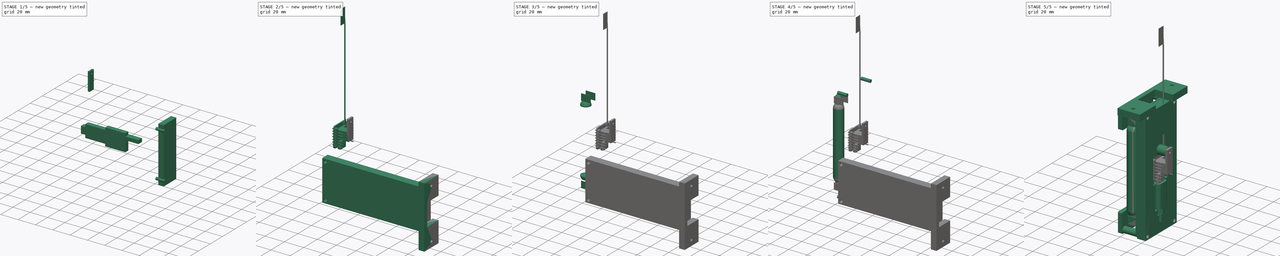
[diagram: build sequence overview — one tinted view per stage of 5, left to right]
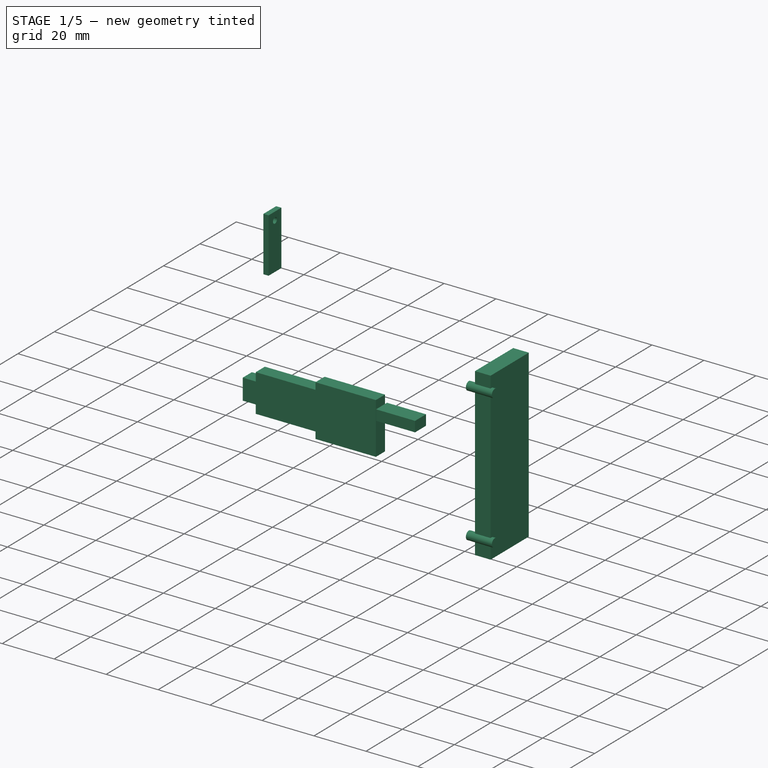
[diagram: stage 1 of 5 — iso view after this stage's code; geometry added in this stage tinted green]
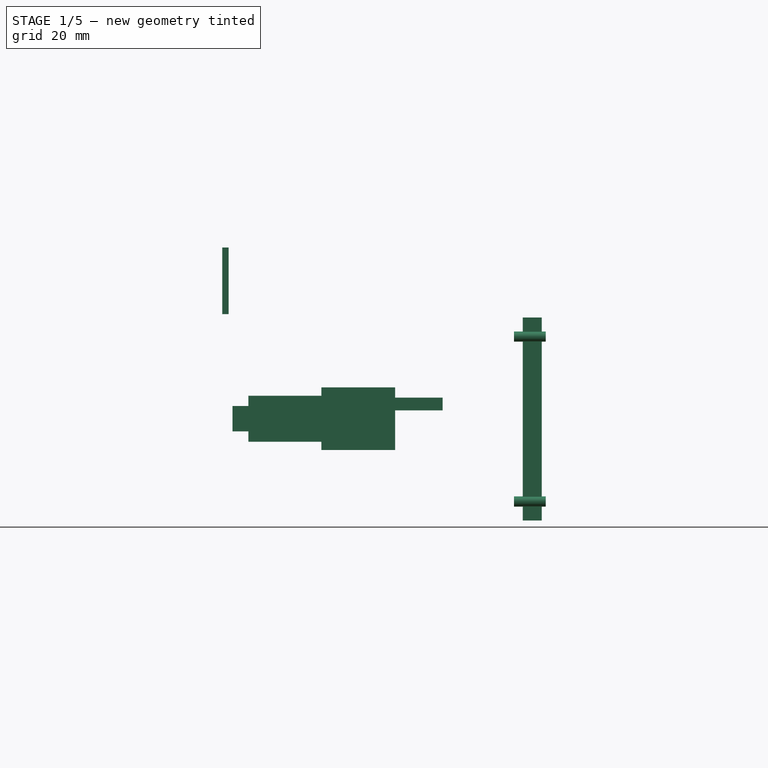
[diagram: stage 1 of 5 — front view after this stage's code; geometry added in this stage tinted green]
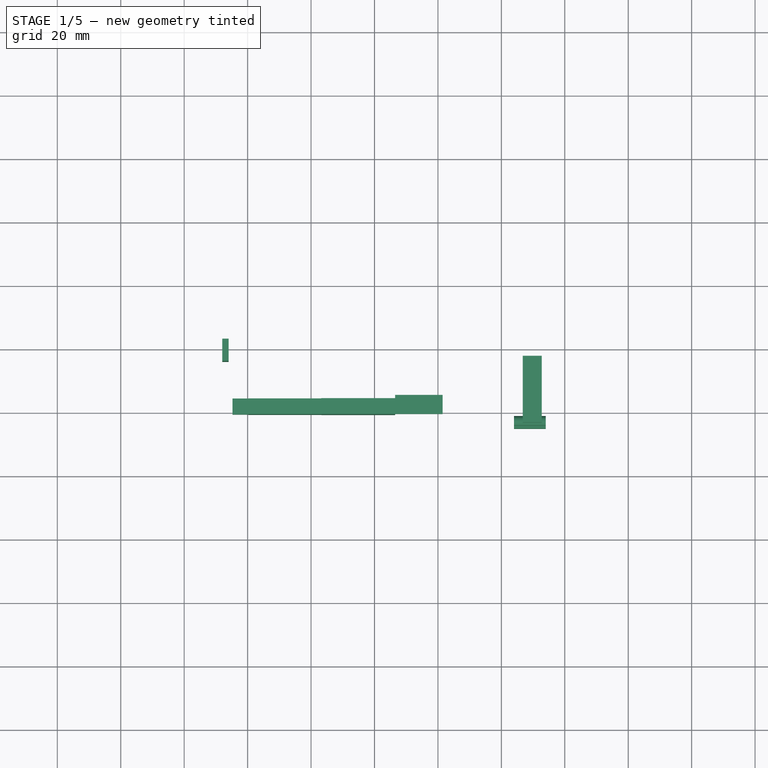
[diagram: stage 1 of 5 — top view after this stage's code; geometry added in this stage tinted green]
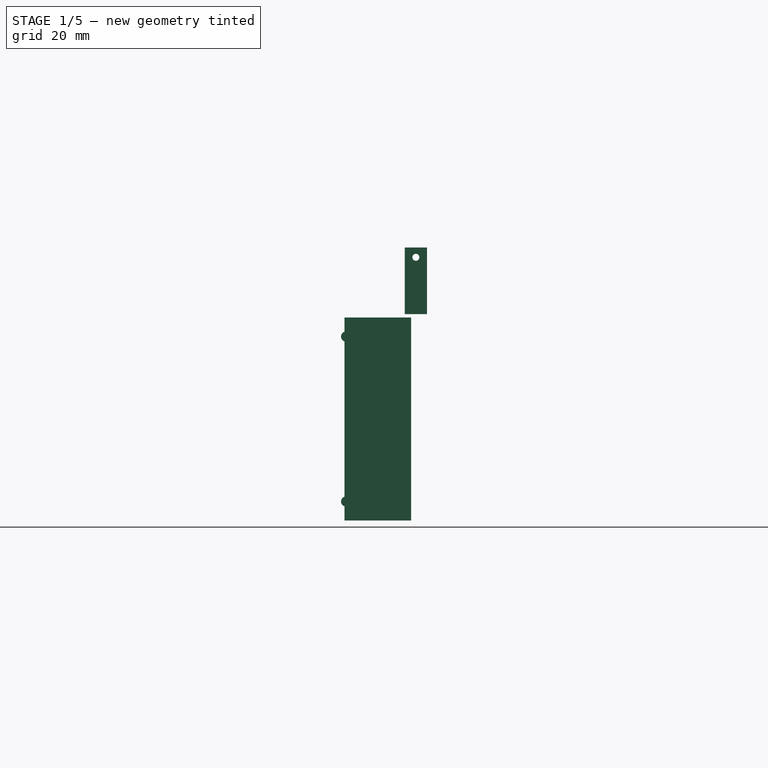
[diagram: stage 1 of 5 — right view after this stage's code; geometry added in this stage tinted green]
FCSTD DOCUMENT  (FreeCAD 1.0R39109 (Git))
Label: GeigerHolder
License: All rights reserved
LicenseURL: https://en.wikipedia.org/wiki/All_rights_reserved
objects: Part::Feature×59, App::Part×18, Part::MultiFuse×12, Part::Cylinder×12, Part::Box×10, Part::Cut×6, Sketcher::SketchObject×5, Part::Extrusion×4, Part::Sphere×4, Part::Fillet×2, Part::FeaturePython×1, Part::Compound×1
note: 121 computed .brp shape members not serialized (recipe doc carries the construction recipe); baked Part::Feature solids carry a one-line shape summary decoded from their .brp

FEATURE [App::Part] pins  label="pins003"
  Group = -> [Part__Feature,Part__Feature001,Part__Feature002]
  Origin = -> Origin003
FEATURE [App::Part] __pin_RMC_v0  label="3 pin RMC v0"
  Group = -> [pins,Part__Feature003]
  Origin = -> Origin004
  Placement = pos=(-3,12.25,7) rot=(0,0,1;4.71239rad)
FEATURE [App::Part] Part002  label="Radiation"
  Group = -> [Part__Feature008,Cylinder001,Cylinder002,Fusion005,Cylinder006,Cylinder007,Cylinder005,Cylinder008,Box,Cut,Sphere001,Sphere002,Cylinder,Fusion002,Fusion001,Fusion004,Fusion003,Cylinder004,Cylinder003,Sphere003,Sphere,Box002,Box001,Box004,Box003,Fusion006,Fillet002,__pin_RMC_v0]
  Origin = -> Origin002
  Placement = pos=(-5.5,0,0) rot=(0,0,1;0rad)
FEATURE [Part::Box] Box005  label="baseMOunt"
  AttacherType = Attacher::AttachEngine3D
  Height = 64
  Length = 6
  Placement = pos=(106.75,-4,-12) rot=(0,0,1;0rad)
  Width = 21
FEATURE [Part::Box] Box009  label="baseMOunt001"
  AttacherType = Attacher::AttachEngine3D
  Height = 23
  Length = 6
  Placement = pos=(106.75,0,9.5) rot=(0,0,1;0rad)
  Width = 17
FEATURE [Part::Cylinder] Cylinder009  label="Cylinder"
  Angle = 360
  AttacherType = Attacher::AttachEngine3D
  FirstAngle = 0
  Height = 10
  Placement = pos=(114,6.5,-6) rot=(0,1,0;4.71239rad)
  Radius = 1.6
  SecondAngle = 0
FEATURE [Part::Cylinder] Cylinder010
  Angle = 360
  AttacherType = Attacher::AttachEngine3D
  FirstAngle = 0
  Height = 10
  Placement = pos=(114,6.5,46) rot=(0,1,0;4.71239rad)
  Radius = 1.6
  SecondAngle = 0
FEATURE [Part::MultiFuse] Fusion010  label="m3Cyl"
  Placement = pos=(0,-10,0) rot=(0,0,1;0rad)
  Refine = true
  Shapes = -> [Cylinder009,Cylinder010]
FEATURE [Part::Box] Box010  label="Cube006"
  AttacherType = Attacher::AttachEngine3D
  Height = 21
  Length = 2
  Placement = pos=(12,15,53.1) rot=(0,0,1;0rad)
  Width = 7
FEATURE [Part::Feature] Part__Feature058  label="USB C -C0046"
  Placement = pos=(6.7,20.1,32) rot=(-0.57735,0.57735,0.57735;2.0944rad)
  shape: bbox 6.63 x 11.9 x 40.53 mm, 28 faces (baked)
FEATURE [App::Part] Part004  label="ESP001"
  Group = -> [XIAO_ESP32S3_v2,_x_Male_Pin_2_54_mm,_x_Male_Pin_2_54_mm001,_069940100,Fusion007,Part__Feature058]
  Origin = -> Origin017
FEATURE [Sketcher::SketchObject] Sketch004
  ArcFitTolerance = 1e-06
  FullyConstrained = true
  MakeInternals = false
  Placement = pos=(0,0,0) rot=(0.57735,0.57735,0.57735;2.0944rad)
  sketch-geometry (12):
    g0: LineSegment StartX=10.25 StartY=66.5 StartZ=0 EndX=10.25 EndY=43.25 EndZ=0
    g1: LineSegment StartX=30 StartY=43.25 StartZ=0 EndX=30 EndY=66.5 EndZ=0
    g2: LineSegment StartX=30 StartY=66.5 StartZ=0 EndX=10.25 EndY=66.5 EndZ=0
    g3: LineSegment StartX=10.25 StartY=43.25 StartZ=0 EndX=12.9 EndY=43.25 EndZ=0
    g4: LineSegment StartX=12.9 StartY=43.25 StartZ=0 EndX=12.9 EndY=20.25 EndZ=0
    g5: LineSegment StartX=12.9 StartY=20.25 StartZ=0 EndX=16.15 EndY=20.25 EndZ=0
    g6: LineSegment StartX=16.15 StartY=20.25 StartZ=0 EndX=16.15 EndY=15.25 EndZ=0
    g7: LineSegment StartX=16.15 StartY=15.25 StartZ=0 EndX=24.15 EndY=15.25 EndZ=0
    g8: LineSegment StartX=24.15 StartY=15.25 StartZ=0 EndX=24.15 EndY=20.25 EndZ=0
    g9: LineSegment StartX=24.15 StartY=20.25 StartZ=0 EndX=27.4 EndY=20.25 EndZ=0
    g10: LineSegment StartX=27.4 StartY=20.25 StartZ=0 EndX=27.4 EndY=43.25 EndZ=0
    g11: LineSegment StartX=27.4 StartY=43.25 StartZ=0 EndX=30 EndY=43.25 EndZ=0
  constraints (36):
    c: Coincident(g1,g2)
    c: Coincident(g2,g0)
    c: Vertical(g0)
    c: Vertical(g1)
    c: Horizontal(g2)
    c: Coincident(g3,g0)
    c: Horizontal(g3)
    c: Coincident(g4,g3)
    c: Vertical(g4)
    c: Coincident(g5,g4)
    c: Horizontal(g5)
    c: Coincident(g6,g5)
    c: Vertical(g6)
    c: Coincident(g7,g6)
    c: Horizontal(g7)
    c: Coincident(g8,g7)
    c: Vertical(g8)
    c: Coincident(g9,g8)
    c: Horizontal(g9)
    c: Coincident(g10,g9)
    c: Vertical(g10)
    c: Coincident(g11,g10)
    c: Coincident(g11,g1)
    c: Horizontal(g11)
    c: Distance(g4) = 23
    c: Distance(g4,g-1) = 20.25
    c: Distance(g5) = 3.25
    c: Distance(g6) = 5
    c: Distance(g7) = 8
    c: Distance(g6,g-2) = 16.15
    c: Distance(g8) = 5
    c: Distance(g9) = 3.25
    c: Distance(g10) = 23
    c: Distance(g0,g-2) = 10.25
    c: Distance(g0) = 23.25
    c: Distance(g2) = 19.75
FEATURE [Part::Extrusion] Extrude003
  Base = -> Sketch004
  Dir = (1,0,0)
  DirMode = 2
  FaceMakerClass = Part::FaceMakerBullseye
  FaceMakerMode = 3
  LengthFwd = 5
  LengthRev = 0
  Placement = pos=(0,4,40.25) rot=(-0.57735,0.57735,-0.57735;2.0944rad)
  Solid = true
  Symmetric = false
FEATURE [Part::Box] Box011  label="Cube007"
  AttacherType = Attacher::AttachEngine3D
  Height = 4
  Length = 15
  Placement = pos=(66.5,-0.9,22.75) rot=(0,0,1;0rad)
  Width = 6
FEATURE [Part::Cylinder] Cylinder011
  Angle = 360
  AttacherType = Attacher::AttachEngine3D
  FirstAngle = 0
  Height = 21
  Placement = pos=(7,18.5,71) rot=(0,1,0;1.5708rad)
  Radius = 1.1
  SecondAngle = 0
FEATURE [Part::Cut] Cut005
  Base = -> Box010
  Refine = true
  Tool = -> Cylinder011
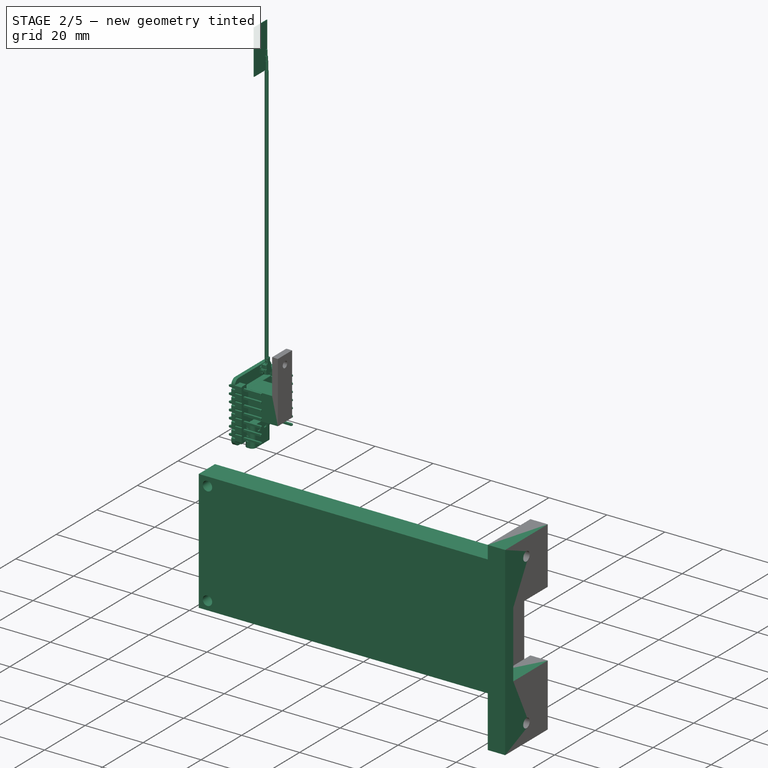
[diagram: stage 2 of 5 — iso view after this stage's code; geometry added in this stage tinted green]
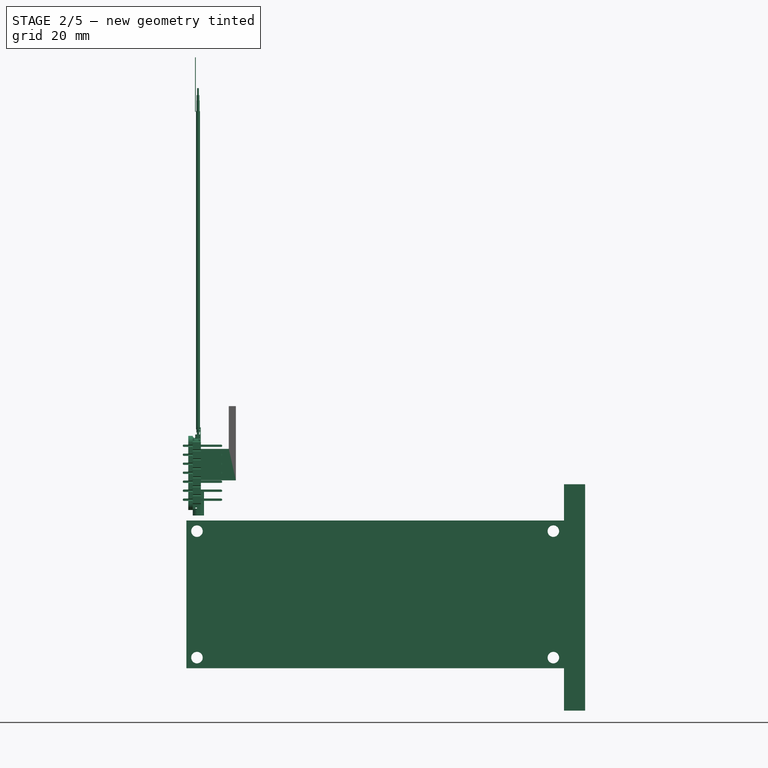
[diagram: stage 2 of 5 — front view after this stage's code; geometry added in this stage tinted green]
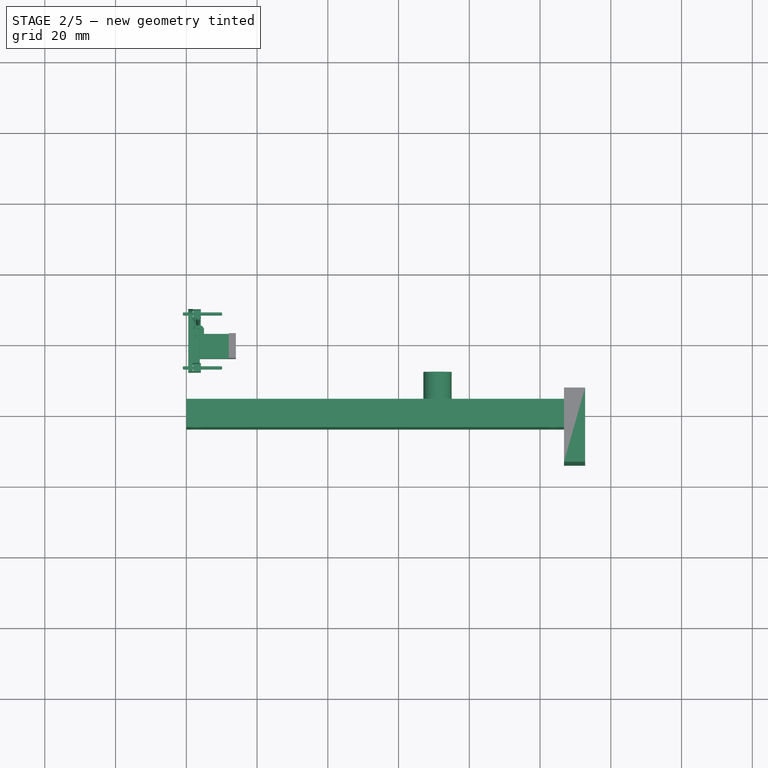
[diagram: stage 2 of 5 — top view after this stage's code; geometry added in this stage tinted green]
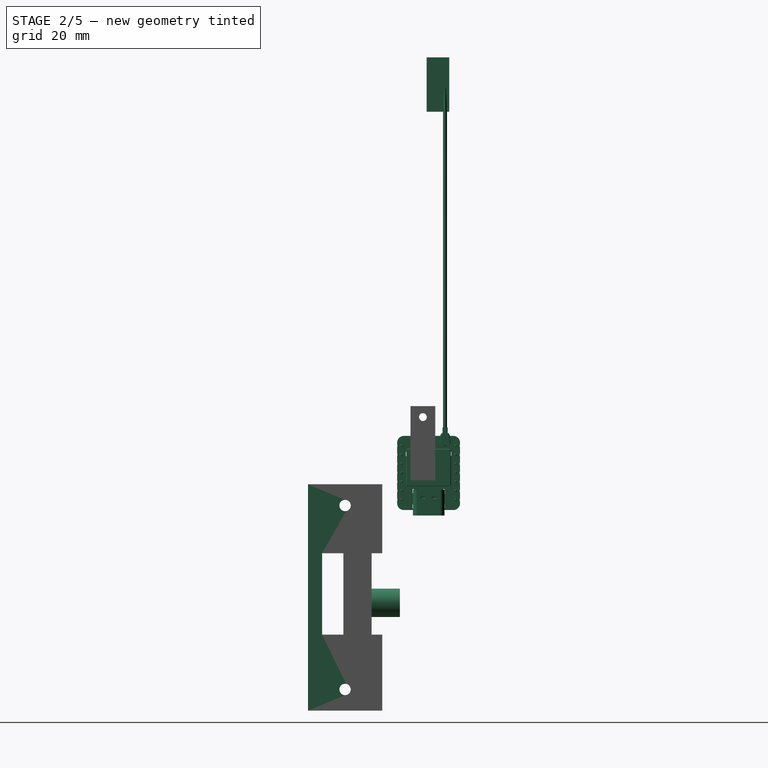
[diagram: stage 2 of 5 — right view after this stage's code; geometry added in this stage tinted green]
FEATURE [Sketcher::SketchObject] Sketch
  ArcFitTolerance = 1e-06
  FullyConstrained = true
  MakeInternals = false
  Placement = pos=(0,0,0) rot=(0.57735,0.57735,0.57735;2.0944rad)
  sketch-geometry (8):
    g0: LineSegment StartX=0 StartY=0 StartZ=0 EndX=106.75 EndY=0 EndZ=0
    g1: LineSegment StartX=106.75 StartY=0 StartZ=0 EndX=106.75 EndY=41.75 EndZ=0
    g2: LineSegment StartX=106.75 StartY=41.75 StartZ=0 EndX=0 EndY=41.75 EndZ=0
    g3: LineSegment StartX=0 StartY=41.75 StartZ=0 EndX=0 EndY=0 EndZ=0
    g4: Circle CenterX=3 CenterY=3 CenterZ=0 NormalX=0 NormalY=0 NormalZ=1 AngleXU=0 Radius=1.625
    g5: Circle CenterX=3 CenterY=38.75 CenterZ=0 NormalX=0 NormalY=0 NormalZ=1 AngleXU=0 Radius=1.625
    g6: Circle CenterX=103.75 CenterY=38.75 CenterZ=0 NormalX=0 NormalY=0 NormalZ=1 AngleXU=0 Radius=1.625
    g7: Circle CenterX=103.75 CenterY=3 CenterZ=0 NormalX=0 NormalY=0 NormalZ=1 AngleXU=0 Radius=1.625
  constraints (23):
    c: Coincident(g0,g1)
    c: Coincident(g1,g2)
    c: Coincident(g2,g3)
    c: Coincident(g3,g0)
    c: Horizontal(g0)
    c: Horizontal(g2)
    c: Vertical(g1)
    c: Vertical(g3)
    c: Coincident(g0,g-1)
    c: Distance(g3) = 41.75
    c: Distance(g0) = 106.75
    c: Distance(g4,g0) = 3
    c: Distance(g4,g-2) = 3
    c: Distance(g5,g-2) = 3
    c: Distance(g5,g-1) = 38.75
    c: Distance(g7,g-2) = 103.75
    c: Distance(g7,g-1) = 3
    c: Distance(g6,g-2) = 103.75
    c: Distance(g6,g-1) = 38.75
    c: Equal(g4,g5)
    c: Equal(g4,g6)
    c: Equal(g4,g7)
    c: Diameter(g4) = 3.25
FEATURE [Part::Extrusion] Extrude  label="Bottom"
  Base = -> Sketch
  Dir = (1,0,0)
  DirMode = 2
  FaceMakerClass = Part::FaceMakerBullseye
  FaceMakerMode = 3
  LengthFwd = 8
  LengthRev = 0
  Placement = pos=(0,4,0) rot=(0,0,1;4.71239rad)
  Solid = true
  Symmetric = false
FEATURE [Part::Feature] Part__Feature009  label="BOSS-EXTRUDE14_8_"
  Placement = pos=(-3.0192,1.09628,5.395) rot=(0,0,1;0rad)
  shape: bbox 0.6 x 1 x 0.3 mm, 6 faces (baked)
FEATURE [Part::Feature] Part__Feature010  label="BOSS-EXTRUDE7_4_"
  Placement = pos=(-3.0192,1.09628,5.395) rot=(0,0,1;0rad)
  shape: bbox 0.3 x 3.784 x 0.75 mm, 6 faces (baked)
FEATURE [Part::Feature] Part__Feature011  label="BOSS-EXTRUDE7_3_"
  Placement = pos=(-3.0192,1.09628,5.395) rot=(0,0,1;0rad)
  shape: bbox 0.3 x 3.784 x 0.75 mm, 6 faces (baked)
FEATURE [Part::Feature] Part__Feature012  label="BOSS-EXTRUDE14_4_"
  Placement = pos=(-3.0192,1.09628,5.395) rot=(0,0,1;0rad)
  shape: bbox 0.3 x 1 x 0.3 mm, 6 faces (baked)
FEATURE [Part::Feature] Part__Feature004  label="BOSS-EXTRUDE14_2_"
  Placement = pos=(-3.0192,1.09628,5.395) rot=(0,0,1;0rad)
  shape: bbox 0.6 x 1 x 0.3 mm, 6 faces (baked)
FEATURE [Part::Feature] Part__Feature005  label="BOSS-EXTRUDE14_11_"
  Placement = pos=(-3.0192,1.09628,5.395) rot=(0,0,1;0rad)
  shape: bbox 0.3 x 1 x 0.3 mm, 6 faces (baked)
FEATURE [Part::Feature] Part__Feature006  label="BOSS-EXTRUDE7_7_"
  Placement = pos=(-3.0192,1.09628,5.395) rot=(0,0,1;0rad)
  shape: bbox 0.3 x 3.784 x 0.75 mm, 6 faces (baked)
FEATURE [Part::Feature] Part__Feature007  label="BOSS-EXTRUDE14_9_"
  Placement = pos=(-3.0192,1.09628,5.395) rot=(0,0,1;0rad)
  shape: bbox 0.3 x 1 x 0.3 mm, 6 faces (baked)
FEATURE [Part::Feature] Part__Feature013  label="BOSS-EXTRUDE14_3_"
  Placement = pos=(-3.0192,1.09628,5.395) rot=(0,0,1;0rad)
  shape: bbox 0.3 x 1 x 0.3 mm, 6 faces (baked)
FEATURE [Part::Feature] Part__Feature014  label="BOSS-EXTRUDE14_7_"
  Placement = pos=(-3.0192,1.09628,5.395) rot=(0,0,1;0rad)
  shape: bbox 0.6 x 1 x 0.3 mm, 6 faces (baked)
FEATURE [Part::Feature] Part__Feature015  label="MIRROR2"
  Placement = pos=(-3.0192,1.09628,5.395) rot=(0,0,1;0rad)
  shape: bbox 6.7 x 4.6 x 0.7 mm, 26 faces (baked)
FEATURE [Part::Feature] Part__Feature016  label="BOSS-EXTRUDE14_5_"
  Placement = pos=(-3.0192,1.09628,5.395) rot=(0,0,1;0rad)
  shape: bbox 0.3 x 1 x 0.3 mm, 6 faces (baked)
FEATURE [Part::Feature] Part__Feature017  label="BOSS-EXTRUDE14_12_"
  Placement = pos=(-3.0192,1.09628,5.395) rot=(0,0,1;0rad)
  shape: bbox 0.3 x 1 x 0.3 mm, 6 faces (baked)
FEATURE [Part::Feature] Part__Feature018  label="BOSS-EXTRUDE7_8_"
  Placement = pos=(-3.0192,1.09628,5.395) rot=(0,0,1;0rad)
  shape: bbox 0.3 x 3.784 x 0.75 mm, 6 faces (baked)
FEATURE [Part::Feature] Part__Feature019  label="BOSS-EXTRUDE7_1_"
  Placement = pos=(-3.0192,1.09628,5.395) rot=(0,0,1;0rad)
  shape: bbox 0.3 x 3.784 x 0.75 mm, 6 faces (baked)
FEATURE [Part::Feature] Part__Feature020  label="BOSS-EXTRUDE14_10_"
  Placement = pos=(-3.0192,1.09628,5.395) rot=(0,0,1;0rad)
  shape: bbox 0.3 x 1 x 0.3 mm, 6 faces (baked)
FEATURE [Part::Feature] Part__Feature021  label="BOSS-EXTRUDE7_9_"
  Placement = pos=(-3.0192,1.09628,5.395) rot=(0,0,1;0rad)
  shape: bbox 0.3 x 3.784 x 0.75 mm, 6 faces (baked)
FEATURE [Part::Feature] Part__Feature022  label="BOSS-EXTRUDE14_6_"
  Placement = pos=(-3.0192,1.09628,5.395) rot=(0,0,1;0rad)
  shape: bbox 0.6 x 1 x 0.3 mm, 6 faces (baked)
FEATURE [Part::Feature] Part__Feature023  label="CHAMFER9"
  Placement = pos=(-3.0192,1.09628,5.395) rot=(0,0,1;0rad)
  shape: bbox 8.94 x 7.3 x 4.2 mm, 103 faces (baked)
FEATURE [Part::Feature] Part__Feature024  label="BOSS-EXTRUDE14_1_"
  Placement = pos=(-3.0192,1.09628,5.395) rot=(0,0,1;0rad)
  shape: bbox 0.3 x 1 x 0.3 mm, 6 faces (baked)
FEATURE [Part::Feature] Part__Feature025  label="BOSS-EXTRUDE7_6_"
  Placement = pos=(-3.0192,1.09628,5.395) rot=(0,0,1;0rad)
  shape: bbox 0.3 x 3.784 x 0.75 mm, 6 faces (baked)
FEATURE [Part::Feature] Part__Feature026  label="BOSS-EXTRUDE7_2_"
  Placement = pos=(-3.0192,1.09628,5.395) rot=(0,0,1;0rad)
  shape: bbox 0.3 x 3.784 x 0.75 mm, 6 faces (baked)
FEATURE [Part::Feature] Part__Feature027  label="CUT-EXTRUDE5"
  Placement = pos=(-3.0192,1.09628,5.395) rot=(0,0,1;0rad)
  shape: bbox 8.867 x 2 x 3.668 mm, 129 faces (baked)
FEATURE [Part::Feature] Part__Feature028  label="BOSS-EXTRUDE7_5_"
  Placement = pos=(-3.0192,1.09628,5.395) rot=(0,0,1;0rad)
  shape: bbox 0.3 x 3.784 x 0.75 mm, 6 faces (baked)
FEATURE [Part::Feature] Part__Feature029  label="Shield"
  shape: bbox 10.6 x 2.7 x 12.6 mm, 38 faces (baked)
FEATURE [Part::Feature] Part__Feature030  label="Body"
  Placement = pos=(0,0,0.1) rot=(0,0,1;0rad)
  shape: bbox 2.6 x 1.6 x 0.6302 mm, 6 faces (baked)
FEATURE [Part::Feature] Part__Feature031  label="Pins"
  shape: bbox 0.4402 x 0.4402 x 0.1002 mm, 6 faces (baked)
FEATURE [Part::Feature] Part__Feature032  label="Pins001"
  shape: bbox 0.44 x 0.44 x 0.1 mm, 6 faces (baked)
FEATURE [Part::Feature] Part__Feature033  label="Pins002"
  shape: bbox 0.44 x 0.44 x 0.1 mm, 6 faces (baked)
FEATURE [Part::Feature] Part__Feature034  label="Pins003"
  shape: bbox 0.44 x 0.44 x 0.1 mm, 6 faces (baked)
FEATURE [Part::Feature] Part__Feature035  label="Body001"
  Placement = pos=(0,0,0.1) rot=(0,0,1;0rad)
  shape: bbox 2.6 x 1.6 x 0.6302 mm, 6 faces (baked)
FEATURE [Part::Feature] Part__Feature036  label="Pins005"
  shape: bbox 0.44 x 0.44 x 0.1 mm, 6 faces (baked)
FEATURE [Part::Feature] Part__Feature037  label="Pins006"
  shape: bbox 0.44 x 0.44 x 0.1 mm, 6 faces (baked)
FEATURE [Part::Feature] Part__Feature038  label="Pins007"
  shape: bbox 0.4402 x 0.4402 x 0.1002 mm, 6 faces (baked)
FEATURE [Part::Feature] Part__Feature039  label="Pins008"
  shape: bbox 0.44 x 0.44 x 0.1 mm, 6 faces (baked)
FEATURE [Part::Feature] Part__Feature040  label="U.FL-R-SMT-1_10_ v1"
  Placement = pos=(-6.95174,1,-10.8381) rot=(-1,0,0;1.5708rad)
  shape: bbox 3.002 x 1.252 x 3.102 mm, 67 faces (baked)
FEATURE [Part::Feature] Part__Feature041  label="SOLID001"
  shape: bbox 20.96 x 1.25 x 17.78 mm, 345 faces (baked)
FEATURE [App::Part] Pins  label="Pins004"
  Group = -> [Part__Feature031,Part__Feature032,Part__Feature033,Part__Feature034]
  Origin = -> Origin007
FEATURE [App::Part] Pins001  label="Pins009"
  Group = -> [Part__Feature036,Part__Feature037,Part__Feature038,Part__Feature039]
  Origin = -> Origin009
FEATURE [App::Part] SKTAAAE010_v002  label="SKTAAAE010 v002"
  Group = -> [Part__Feature035,Pins001]
  Origin = -> Origin010
  Placement = pos=(10.6911,1,-0.186818) rot=(-1,0,0;1.5708rad)
FEATURE [App::Part] SKTAAAE010_v1  label="SKTAAAE010 v1"
  Group = -> [Part__Feature030,Pins]
  Origin = -> Origin008
  Placement = pos=(10.7092,1,-12.0449) rot=(-1,0,0;1.5708rad)
FEATURE [App::Part] USB_TYPE_C_PORT__1_  label="USB TYPE C PORT (1)"
  Group = -> [Part__Feature009,Part__Feature010,Part__Feature011,Part__Feature012,Part__Feature004,Part__Feature005,Part__Feature006,Part__Feature007,Part__Feature013,Part__Feature014,Part__Feature015,Part__Feature016,Part__Feature017,Part__Feature018,Part__Feature019,Part__Feature020,Part__Feature021,Part__Feature022,Part__Feature023,Part__Feature024,Part__Feature025,Part__Feature026,Part__Feature027,+1 more]
  Origin = -> Origin005
  Placement = pos=(-3.0192,1.09628,5.395) rot=(0,0,1;0rad)
FEATURE [App::Part] USB_TYPE_C_PORT  label="USB TYPE C PORT"
  Group = -> [USB_TYPE_C_PORT__1_]
  Origin = -> Origin006
  Placement = pos=(4.31609,13.395,-12.1571) rot=(0.57735,0.57735,-0.57735;2.0944rad)
FEATURE [App::Part] Seeed_Studio_XIAO_ESP32_S3__Sense_  label="Seeed Studio XIAO-ESP32-S3 (Sense)"
  Group = -> [USB_TYPE_C_PORT,Part__Feature029,SKTAAAE010_v1,SKTAAAE010_v002,Part__Feature040,Part__Feature041]
  Origin = -> Origin011
FEATURE [App::Part] XIAO_ESP32S3_v2  label="XIAO-ESP32S3 v2"
  Group = -> [Seeed_Studio_XIAO_ESP32_S3__Sense_]
  Origin = -> Origin012
  Placement = pos=(2.2,14,57) rot=(-0.57735,-0.57735,0.57735;4.18879rad)
FEATURE [Part::Feature] Part__Feature042  label="1_Male_Pin_2.54_mm"
  Placement = pos=(3.87631,2.25619,11.0637) rot=(0,0,1;0rad)
  shape: bbox 2.54 x 11.1 x 2.4 mm, 32 faces (baked)
FEATURE [Part::Feature] Part__Feature043  label="1_Male_Pin_2.54_mm001"
  Placement = pos=(1.33631,2.25619,11.0637) rot=(0,0,1;0rad)
  shape: bbox 2.54 x 11.1 x 2.4 mm, 32 faces (baked)
FEATURE [Part::Feature] Part__Feature044  label="1_Male_Pin_2.54_mm002"
  Placement = pos=(-1.20369,2.25619,11.0637) rot=(0,0,1;0rad)
  shape: bbox 2.54 x 11.1 x 2.4 mm, 32 faces (baked)
FEATURE [Part::Feature] Part__Feature045  label="1_Male_Pin_2.54_mm003"
  Placement = pos=(-3.74369,2.25619,11.0637) rot=(0,0,1;0rad)
  shape: bbox 2.54 x 11.1 x 2.4 mm, 32 faces (baked)
FEATURE [Part::Feature] Part__Feature046  label="1_Male_Pin_2.54_mm004"
  Placement = pos=(-6.28369,2.25619,11.0637) rot=(0,0,1;0rad)
  shape: bbox 2.54 x 11.1 x 2.4 mm, 32 faces (baked)
FEATURE [Part::Feature] Part__Feature047  label="1_Male_Pin_2.54_mm005"
  Placement = pos=(-8.82369,2.25619,11.0637) rot=(0,0,1;0rad)
  shape: bbox 2.54 x 11.1 x 2.4 mm, 32 faces (baked)
FEATURE [Part::Feature] Part__Feature048  label="1_Male_Pin_2.54_mm006"
  Placement = pos=(-11.3637,2.25619,11.0637) rot=(0,0,1;0rad)
  shape: bbox 2.54 x 11.1 x 2.4 mm, 32 faces (baked)
FEATURE [App::Part] _x_Male_Pin_2_54_mm  label="7x_Male_Pin_2.54_mm"
  Group = -> [Part__Feature042,Part__Feature043,Part__Feature044,Part__Feature045,Part__Feature046,Part__Feature047,Part__Feature048]
  Origin = -> Origin013
  Placement = pos=(-2.05,23.87,51.85) rot=(-0.57735,-0.57735,0.57735;4.18879rad)
FEATURE [Part::Feature] Part__Feature049  label="1_Male_Pin_2.54_mm007"
  Placement = pos=(3.87631,2.25619,11.0637) rot=(0,0,1;0rad)
  shape: bbox 2.54 x 11.1 x 2.4 mm, 32 faces (baked)
FEATURE [Part::Feature] Part__Feature050  label="1_Male_Pin_2.54_mm008"
  Placement = pos=(1.33631,2.25619,11.0637) rot=(0,0,1;0rad)
  shape: bbox 2.54 x 11.1 x 2.4 mm, 32 faces (baked)
FEATURE [Part::Feature] Part__Feature051  label="1_Male_Pin_2.54_mm009"
  Placement = pos=(-1.20369,2.25619,11.0637) rot=(0,0,1;0rad)
  shape: bbox 2.54 x 11.1 x 2.4 mm, 32 faces (baked)
FEATURE [Part::Feature] Part__Feature052  label="1_Male_Pin_2.54_mm010"
  Placement = pos=(-3.74369,2.25619,11.0637) rot=(0,0,1;0rad)
  shape: bbox 2.54 x 11.1 x 2.4 mm, 32 faces (baked)
FEATURE [Part::Feature] Part__Feature053  label="1_Male_Pin_2.54_mm011"
  Placement = pos=(-6.28369,2.25619,11.0637) rot=(0,0,1;0rad)
  shape: bbox 2.54 x 11.1 x 2.4 mm, 32 faces (baked)
FEATURE [Part::Feature] Part__Feature054  label="1_Male_Pin_2.54_mm012"
  Placement = pos=(-8.82369,2.25619,11.0637) rot=(0,0,1;0rad)
  shape: bbox 2.54 x 11.1 x 2.4 mm, 32 faces (baked)
FEATURE [Part::Feature] Part__Feature055  label="1_Male_Pin_2.54_mm013"
  Placement = pos=(-11.3637,2.25619,11.0637) rot=(0,0,1;0rad)
  shape: bbox 2.54 x 11.1 x 2.4 mm, 32 faces (baked)
FEATURE [App::Part] _x_Male_Pin_2_54_mm001  label="7x_Male_Pin_2.54_mm001"
  Group = -> [Part__Feature049,Part__Feature050,Part__Feature051,Part__Feature052,Part__Feature053,Part__Feature054,Part__Feature055]
  Origin = -> Origin014
  Placement = pos=(-2.05,39.12,51.85) rot=(-0.57735,-0.57735,0.57735;4.18879rad)
FEATURE [Part::Feature] Part__Feature056  label="2069940100"
  shape: bbox 15.41 x 6.405 x 0.215 mm, 9 faces (baked)
FEATURE [Part::Feature] Part__Feature057  label="2069940100001"
  shape: bbox 101.4 x 3.017 x 2.167 mm, 204 faces (baked)
FEATURE [App::Part] _069940100  label="2069940100002"
  Group = -> [Part__Feature056,Part__Feature057]
  Origin = -> Origin015
  Placement = pos=(4,25.75,157.5) rot=(0.707107,0,0.707107;3.14159rad)
FEATURE [Sketcher::SketchObject] Sketch003
  ArcFitTolerance = 1e-06
  FullyConstrained = true
  MakeInternals = false
  Placement = pos=(0,0,0) rot=(0.57735,0.57735,0.57735;2.0944rad)
  sketch-geometry (4):
    g0: LineSegment StartX=14.5491 StartY=71.8507 StartZ=0 EndX=14.5491 EndY=52.2908 EndZ=0
    g1: LineSegment StartX=14.5491 StartY=52.2908 StartZ=0 EndX=22.4289 EndY=52.2908 EndZ=0
    g2: LineSegment StartX=22.4289 StartY=71.8507 StartZ=0 EndX=22.4289 EndY=52.2908 EndZ=0
    g3: LineSegment StartX=14.5491 StartY=71.8507 StartZ=0 EndX=22.4289 EndY=71.8507 EndZ=0
  constraints (11):
    c: Vertical(g0)
    c: Coincident(g1,g0)
    c: Horizontal(g1)
    c: Block(g1)
    c: Coincident(g2,g1)
    c: Vertical(g2)
    c: Coincident(g3,g0)
    c: Coincident(g3,g2)
    c: Horizontal(g3)
    c: Distance(g1) = 7.87986
    c: Block(g0)
FEATURE [Part::MultiFuse] Fusion007  label="ESP"
  Placement = pos=(-1.4,0,0) rot=(0,0,1;0rad)
  Refine = true
  Shapes = -> [XIAO_ESP32S3_v2,_x_Male_Pin_2_54_mm,_x_Male_Pin_2_54_mm001,_069940100]
FEATURE [Part::Box] Box007  label="Cube004"
  AttacherType = Attacher::AttachEngine3D
  Height = 8.9
  Length = 8.2
  Placement = pos=(3.8,15,53.1) rot=(0,0,1;0rad)
  Width = 7
FEATURE [Part::Cut] Cut001  label="BaseMount"
  Base = -> Box005
  Placement = pos=(0,-10,0) rot=(0,0,1;0rad)
  Refine = true
  Tool = -> Box009
FEATURE [Part::MultiFuse] Fusion009  label="Mount"
  Refine = true
  Shapes = -> [Cut001,Extrude]
FEATURE [Part::Cut] Cut002  label="Mount_m3Cut"
  Base = -> Fusion009
  Refine = true
  Tool = -> Fusion010
FEATURE [Part::FeaturePython] Tube003  label="Tube007"  # WARN: FeaturePython — macro-defined, semantics opaque (R4)
  AttacherType = Attacher::AttachEngine3D
  Height = 12
  InnerRadius = 1.5
  OuterRadius = 4
  Placement = pos=(71,12,18.5) rot=(0.57735,0.57735,-0.57735;2.0944rad)
FEATURE [Part::Cut] Cut003  label="ESP_cut"
  Base = -> Cut002
  Refine = true
  Tool = -> Extrude003
FEATURE [Part::Cut] Cut004  label="LoRa_Cut"
  Base = -> Cut003
  Refine = true
  Tool = -> Box011
FEATURE [Part::MultiFuse] Fusion011  label="Bottom001"
  Refine = true
  Shapes = -> [Tube003,Cut004]
FEATURE [App::Part] Part001  label="GeigerBottom"
  Group = -> [Cut002,Sketch004,Fusion009,Fusion010,Cut001,Extrude,Tube003,Sketch,Box005,Box009,Cylinder009,Cylinder010,Extrude003,Cut003,Cut004,Box011,Fusion011]
  Origin = -> Origin001
  Placement = pos=(0,0,0) rot=(-0.57735,-0.57735,-0.57735;2.0944rad)
FEATURE [Part::MultiFuse] Fusion012  label="Cap"
  Refine = true
  Shapes = -> [Box007,Cut005]
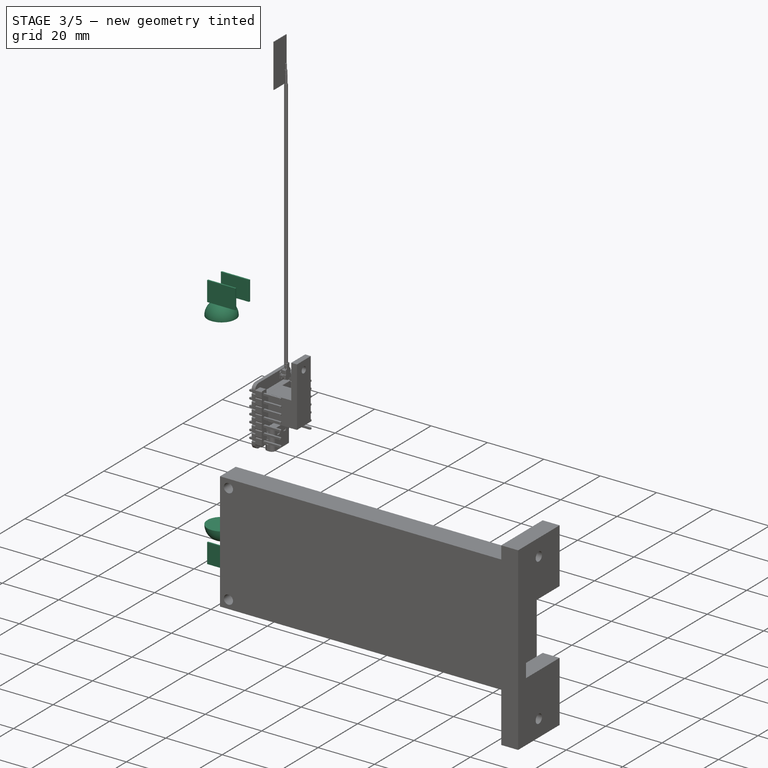
[diagram: stage 3 of 5 — iso view after this stage's code; geometry added in this stage tinted green]
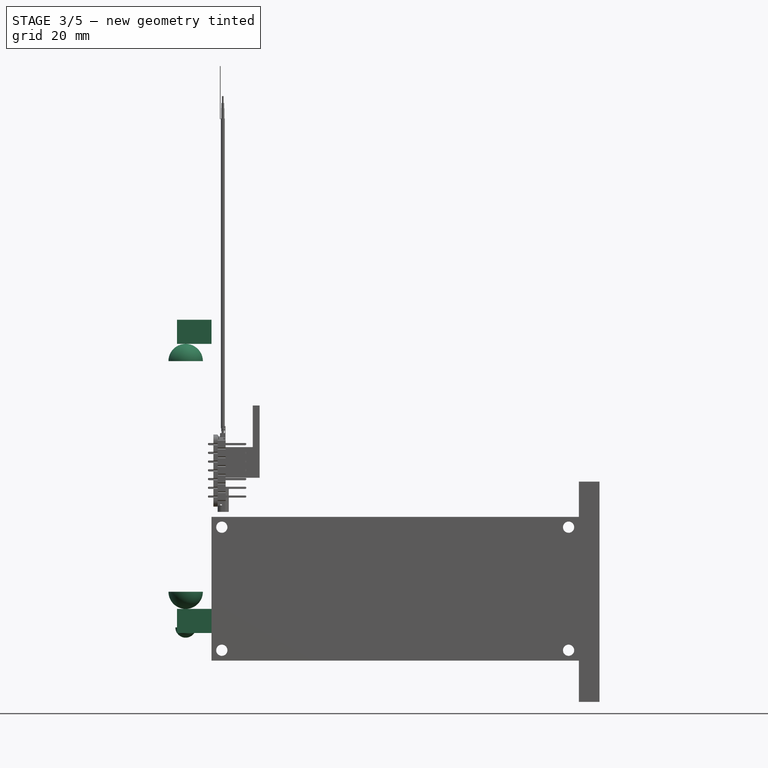
[diagram: stage 3 of 5 — front view after this stage's code; geometry added in this stage tinted green]
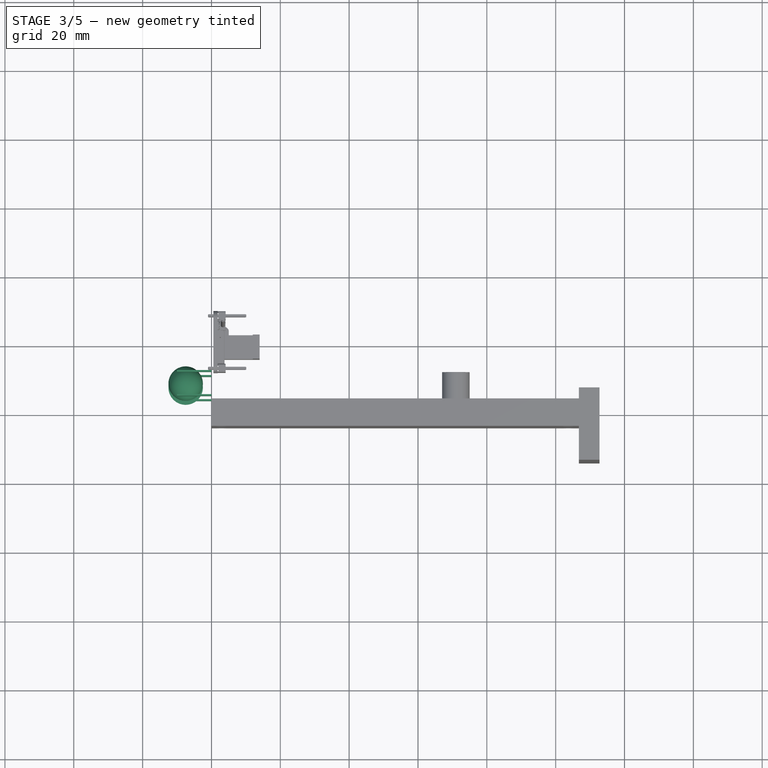
[diagram: stage 3 of 5 — top view after this stage's code; geometry added in this stage tinted green]
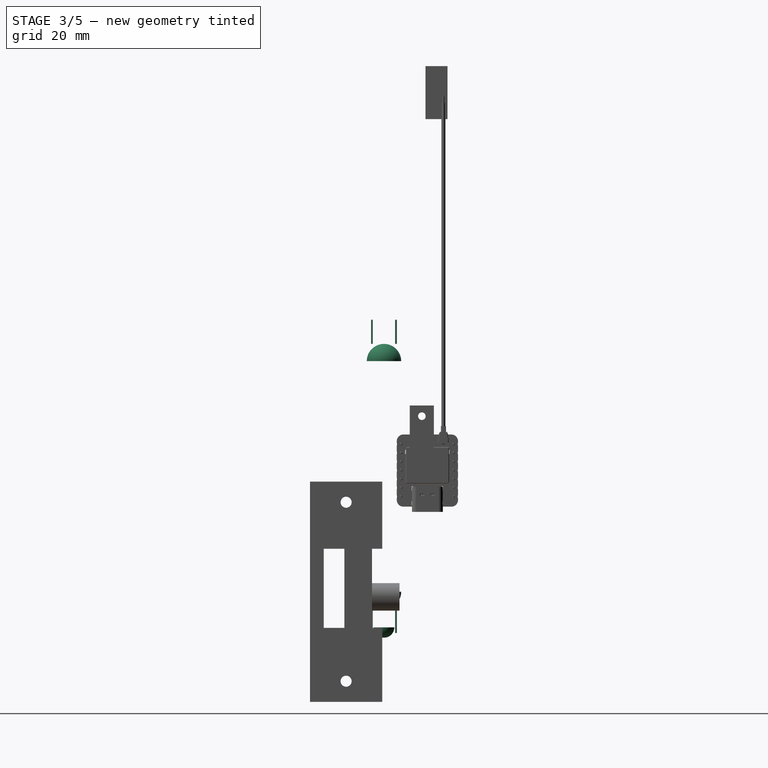
[diagram: stage 3 of 5 — right view after this stage's code; geometry added in this stage tinted green]
FEATURE [Part::Box] Box001  label="Cube"
  AttacherType = Attacher::AttachEngine3D
  Height = 7
  Length = 10
  Placement = pos=(-10,3.75,8) rot=(0,0,1;0rad)
  Width = 0.5
FEATURE [Part::Box] Box002  label="Cube001"
  AttacherType = Attacher::AttachEngine3D
  Height = 7
  Length = 10
  Placement = pos=(-10,10.75,8) rot=(0,0,1;0rad)
  Width = 0.5
FEATURE [Part::Box] Box003  label="Cube002"
  AttacherType = Attacher::AttachEngine3D
  Height = 7
  Length = 10
  Placement = pos=(-10,3.75,92) rot=(0,0,1;0rad)
  Width = 0.5
FEATURE [Part::Box] Box004  label="Cube003"
  AttacherType = Attacher::AttachEngine3D
  Height = 7
  Length = 10
  Placement = pos=(-10,10.75,92) rot=(0,0,1;0rad)
  Width = 0.5
FEATURE [Part::MultiFuse] Fusion003  label="bottom_tubehold"
  Refine = true
  Shapes = -> [Box001,Box002]
FEATURE [Part::MultiFuse] Fusion004  label="top_tubehold"
  Refine = true
  Shapes = -> [Box003,Box004]
FEATURE [Part::Feature] Part__Feature  label="pins"
  Placement = pos=(7.37732,-14.6706,0.356181) rot=(-1,0,0;1.5708rad)
  shape: bbox 0.64 x 0.64 x 8.5 mm, 12 faces (baked)
FEATURE [Part::Feature] Part__Feature001  label="pins001"
  Placement = pos=(7.37732,-14.6706,0.356181) rot=(-1,0,0;1.5708rad)
  shape: bbox 0.64 x 0.64 x 8.5 mm, 12 faces (baked)
FEATURE [Part::Feature] Part__Feature002  label="pins002"
  Placement = pos=(7.37732,-14.6706,0.356181) rot=(-1,0,0;1.5708rad)
  shape: bbox 0.64 x 0.64 x 8.5 mm, 12 faces (baked)
FEATURE [Part::Feature] Part__Feature003  label="SOLID"
  shape: bbox 9.98 x 5.7 x 7 mm, 38 faces (baked)
FEATURE [Part::Feature] Part__Feature008  label="switch"
  Placement = pos=(-2,36,30) rot=(-0.57735,0.57735,0.57735;2.0944rad)
  shape: bbox 3.5 x 9.656 x 8.5 mm, 169 faces (baked)
FEATURE [Part::Sphere] Sphere
  Angle1 = -90
  Angle2 = 90
  Angle3 = 180
  AttacherType = Attacher::AttachEngine3D
  Placement = pos=(-7.5,7.5,20) rot=(1,0,0;4.71239rad)
  Radius = 5
FEATURE [Part::Sphere] Sphere001
  Angle1 = -90
  Angle2 = 90
  Angle3 = 180
  AttacherType = Attacher::AttachEngine3D
  Placement = pos=(-7.5,7.5,87) rot=(-1,0,0;4.71239rad)
  Radius = 5
FEATURE [Part::Sphere] Sphere002
  Angle1 = -90
  Angle2 = 90
  Angle3 = 180
  AttacherType = Attacher::AttachEngine3D
  Placement = pos=(-7.5,7.5,9.65) rot=(1,0,0;4.71239rad)
  Radius = 3
FEATURE [Part::Sphere] Sphere003
  Angle1 = -90
  Angle2 = 90
  Angle3 = 180
  AttacherType = Attacher::AttachEngine3D
  Placement = pos=(-7.5,7.5,9.65) rot=(1,0,0;4.71239rad)
  Radius = 3
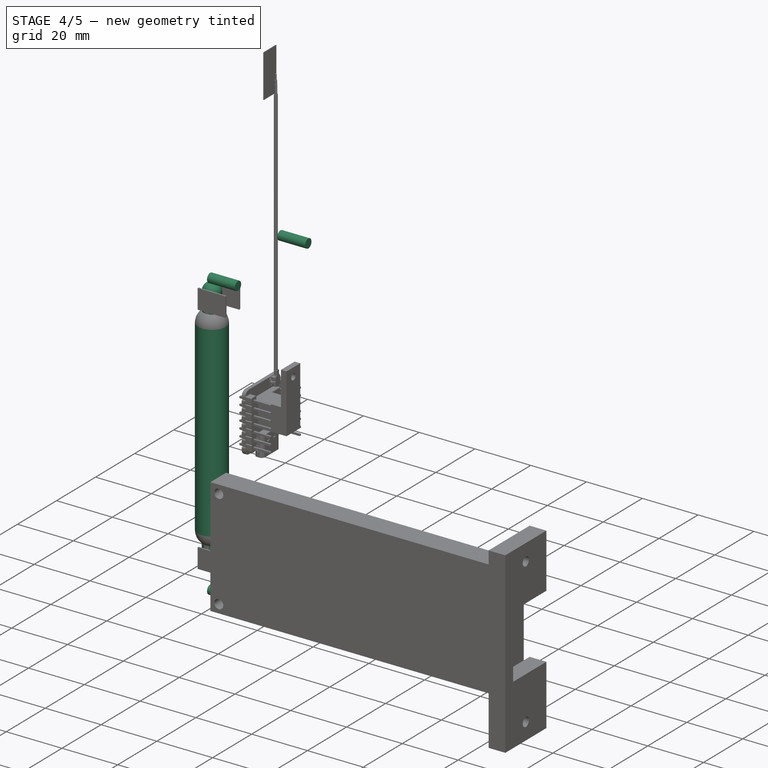
[diagram: stage 4 of 5 — iso view after this stage's code; geometry added in this stage tinted green]
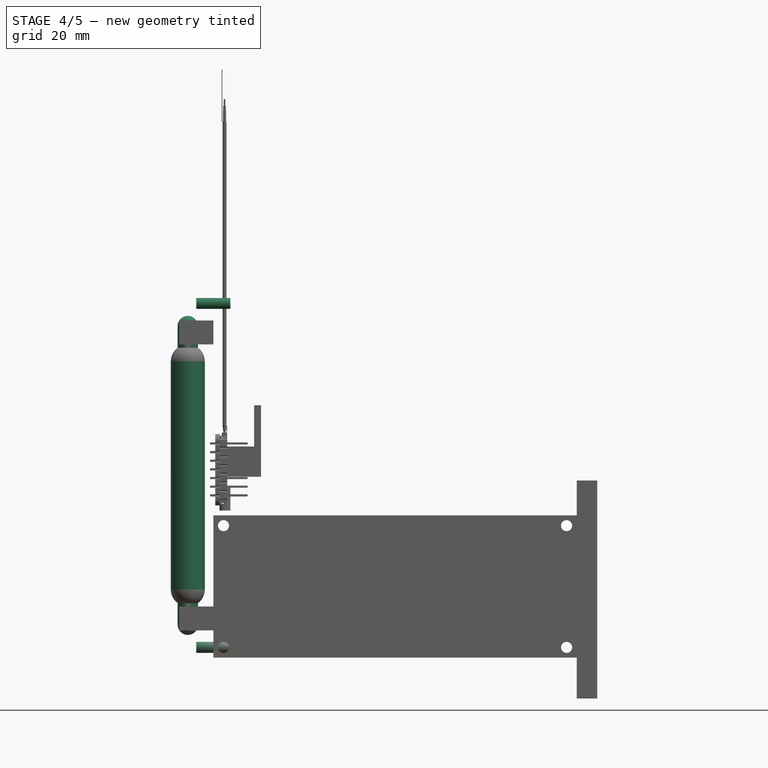
[diagram: stage 4 of 5 — front view after this stage's code; geometry added in this stage tinted green]
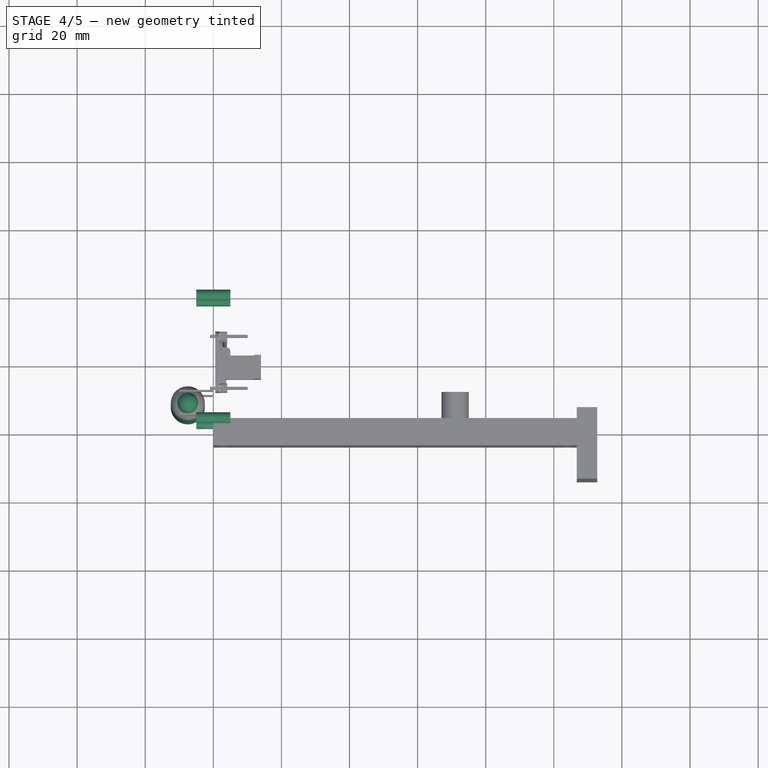
[diagram: stage 4 of 5 — top view after this stage's code; geometry added in this stage tinted green]
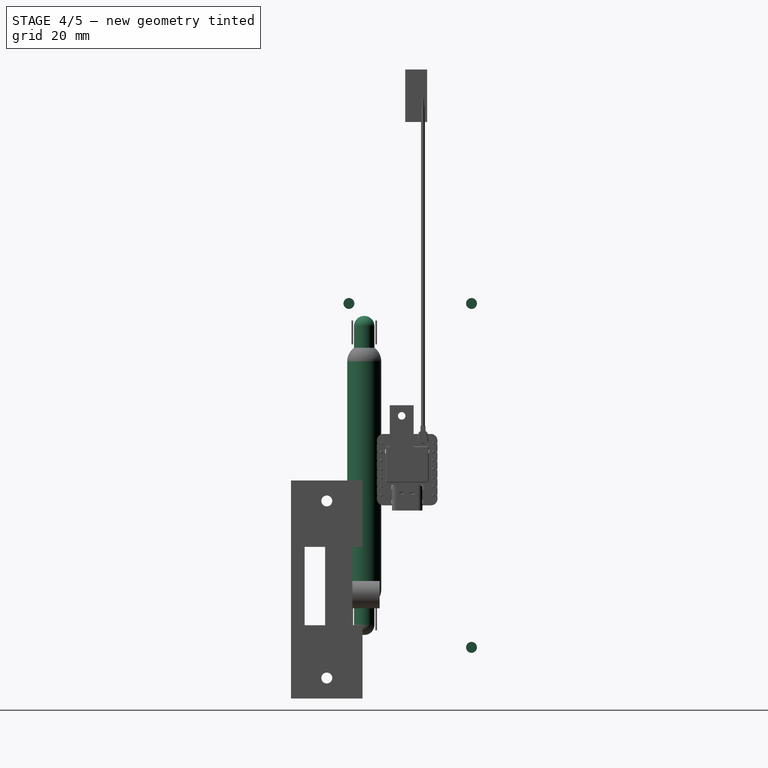
[diagram: stage 4 of 5 — right view after this stage's code; geometry added in this stage tinted green]
FEATURE [Part::Cylinder] Cylinder  label="Tube"
  Angle = 360
  AttacherType = Attacher::AttachEngine3D
  FirstAngle = 0
  Height = 67
  Placement = pos=(-7.5,7.5,20) rot=(0,0,1;0rad)
  Radius = 5
  SecondAngle = 0
FEATURE [Part::Cylinder] Cylinder003  label="Tube001"
  Angle = 360
  AttacherType = Attacher::AttachEngine3D
  FirstAngle = 0
  Height = 6.35
  Placement = pos=(-7.5,7.5,9.65) rot=(0,0,1;0rad)
  Radius = 3
  SecondAngle = 0
FEATURE [Part::Cylinder] Cylinder004  label="Tube002"
  Angle = 360
  AttacherType = Attacher::AttachEngine3D
  FirstAngle = 0
  Height = 6.35
  Placement = pos=(-7.5,7.5,9.65) rot=(0,0,1;0rad)
  Radius = 3
  SecondAngle = 0
FEATURE [Part::Cylinder] Cylinder005
  Angle = 360
  AttacherType = Attacher::AttachEngine3D
  FirstAngle = 0
  Height = 10
  Placement = pos=(5,3,3) rot=(0,1,0;4.71239rad)
  Radius = 1.6
  SecondAngle = 0
FEATURE [Part::Cylinder] Cylinder006
  Angle = 360
  AttacherType = Attacher::AttachEngine3D
  FirstAngle = 0
  Height = 10
  Placement = pos=(5,39,3) rot=(0,1,0;4.71239rad)
  Radius = 1.6
  SecondAngle = 0
FEATURE [Part::Cylinder] Cylinder007
  Angle = 360
  AttacherType = Attacher::AttachEngine3D
  FirstAngle = 0
  Height = 10
  Placement = pos=(5,3,104) rot=(0,1,0;4.71239rad)
  Radius = 1.6
  SecondAngle = 0
FEATURE [Part::Cylinder] Cylinder008
  Angle = 360
  AttacherType = Attacher::AttachEngine3D
  FirstAngle = 0
  Height = 10
  Placement = pos=(5,39,104) rot=(0,1,0;4.71239rad)
  Radius = 1.6
  SecondAngle = 0
FEATURE [Part::MultiFuse] Fusion005  label="m3_cyl"
  Refine = true
  Shapes = -> [Cylinder005,Cylinder006,Cylinder007,Cylinder008]
FEATURE [Part::MultiFuse] Fusion001  label="bottomend"
  Refine = true
  Shapes = -> [Cylinder003,Sphere002]
FEATURE [Part::MultiFuse] Fusion002  label="topend"
  Placement = pos=(0,15,107) rot=(1,0,0;3.14159rad)
  Refine = true
  Shapes = -> [Cylinder004,Sphere003]
FEATURE [Part::MultiFuse] Fusion006  label="Tube003"
  Refine = true
  Shapes = -> [Cylinder,Sphere,Sphere001,Fusion001,Fusion002,Fusion003,Fusion004]
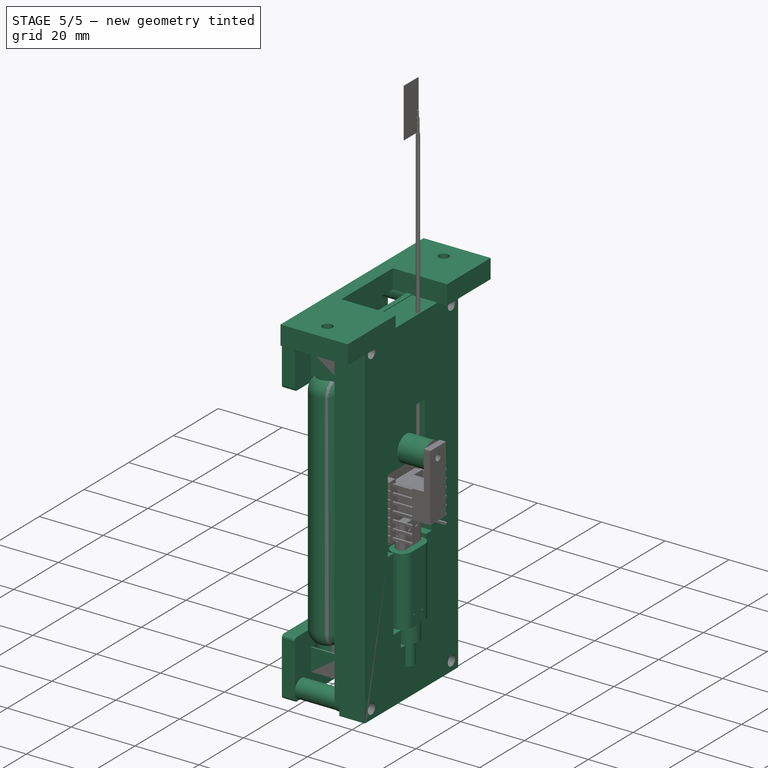
[diagram: stage 5 of 5 — iso view after this stage's code; geometry added in this stage tinted green]
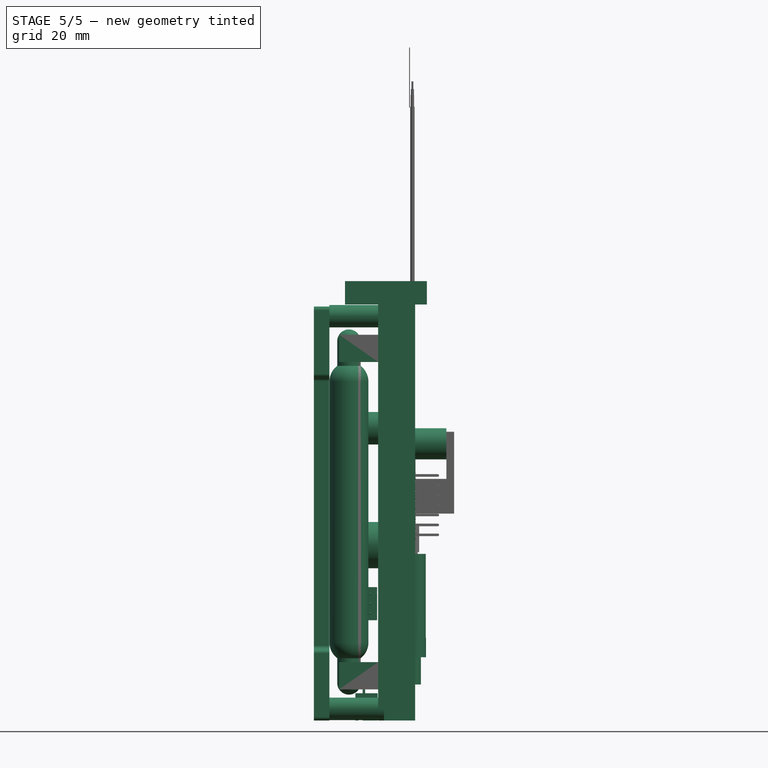
[diagram: stage 5 of 5 — front view after this stage's code; geometry added in this stage tinted green]
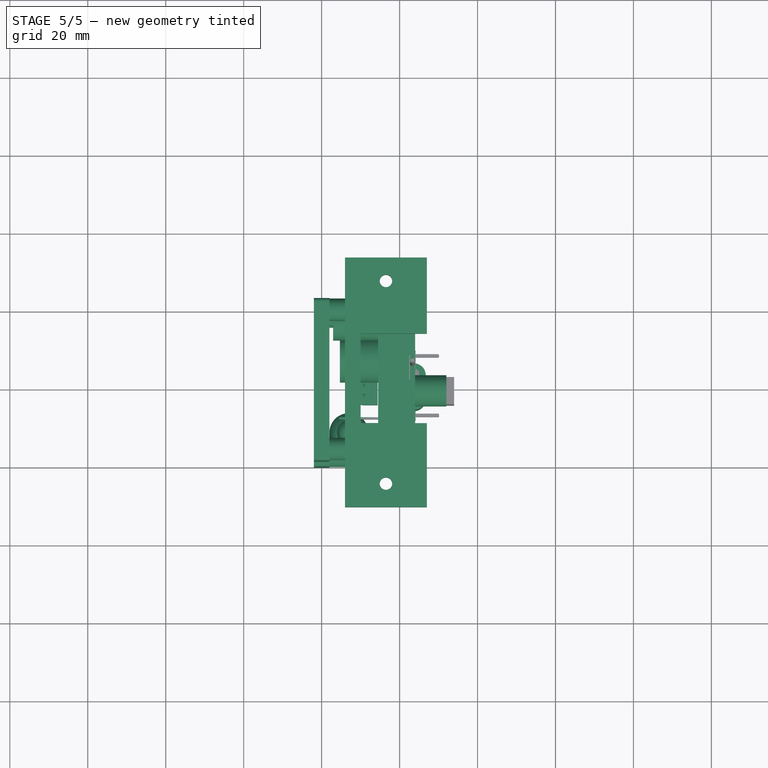
[diagram: stage 5 of 5 — top view after this stage's code; geometry added in this stage tinted green]
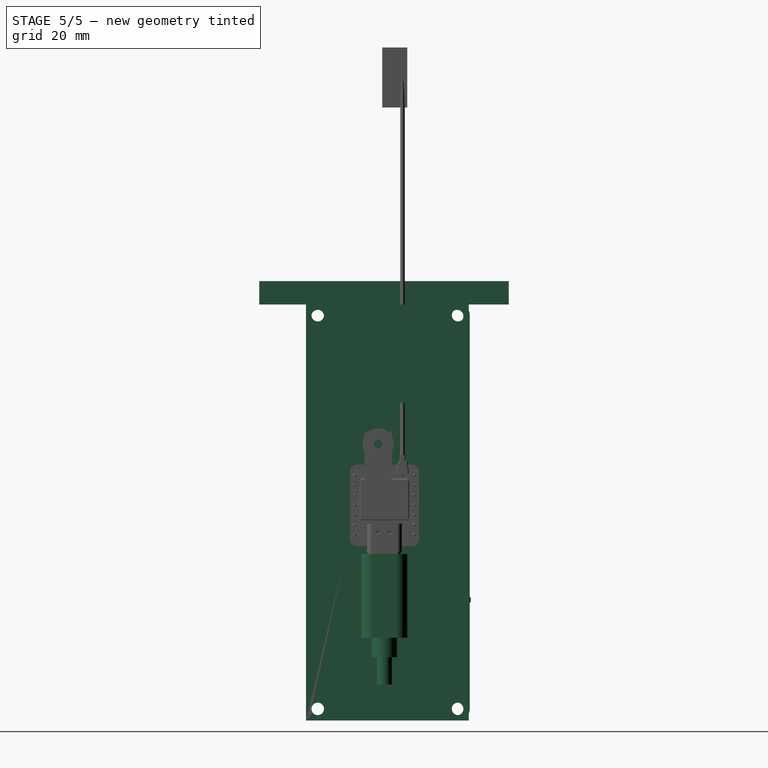
[diagram: stage 5 of 5 — right view after this stage's code; geometry added in this stage tinted green]
FEATURE [Sketcher::SketchObject] Sketch001
  ArcFitTolerance = 1e-06
  FullyConstrained = true
  MakeInternals = false
  Placement = pos=(0,0,0) rot=(0.57735,0.57735,0.57735;2.0944rad)
  sketch-geometry (12):
    g0: LineSegment StartX=106.25 StartY=0 StartZ=0 EndX=106.25 EndY=41.75 EndZ=0
    g1: LineSegment StartX=106.25 StartY=41.75 StartZ=0 EndX=0 EndY=41.75 EndZ=0
    g2: LineSegment StartX=3.8e-15 StartY=41.75 StartZ=0 EndX=3.8e-15 EndY=0 EndZ=0
    g3: Circle CenterX=3 CenterY=3 CenterZ=0 NormalX=0 NormalY=0 NormalZ=1 AngleXU=0 Radius=1.625
    g4: Circle CenterX=3 CenterY=38.75 CenterZ=0 NormalX=0 NormalY=0 NormalZ=1 AngleXU=0 Radius=1.625
    g5: Circle CenterX=103.75 CenterY=38.75 CenterZ=0 NormalX=0 NormalY=0 NormalZ=1 AngleXU=0 Radius=1.625
    g6: Circle CenterX=103.75 CenterY=3 CenterZ=0 NormalX=0 NormalY=0 NormalZ=1 AngleXU=0 Radius=1.625
    g7: LineSegment StartX=3.8e-15 StartY=0 StartZ=0 EndX=18.25 EndY=0 EndZ=0
    g8: LineSegment StartX=18.25 StartY=0 StartZ=0 EndX=18.25 EndY=15 EndZ=0
    g9: LineSegment StartX=18.25 StartY=15 StartZ=0 EndX=88 EndY=15 EndZ=0
    g10: LineSegment StartX=88 StartY=15 StartZ=0 EndX=88 EndY=0 EndZ=0
    g11: LineSegment StartX=88 StartY=0 StartZ=0 EndX=106.25 EndY=0 EndZ=0
  constraints (36):
    c: Coincident(g0,g1)
    c: Coincident(g1,g2)
    c: Horizontal(g1)
    c: Vertical(g0)
    c: Vertical(g2)
    c: Distance(g2) = 41.75
    c: Distance(g3,g-2) = 3
    c: Distance(g4,g-2) = 3
    c: Distance(g4,g-1) = 38.75
    c: Distance(g6,g-2) = 103.75
    c: Distance(g6,g-1) = 3
    c: Distance(g5,g-2) = 103.75
    c: Distance(g5,g-1) = 38.75
    c: Equal(g3,g4)
    c: Equal(g3,g5)
    c: Equal(g3,g6)
    c: Diameter(g3) = 3.25
    c: Coincident(g7,g2)
    c: PointOnObject(g7,g-1)
    c: Horizontal(g7)
    c: Coincident(g8,g7)
    c: Vertical(g8)
    c: Coincident(g9,g8)
    c: Horizontal(g9)
    c: Coincident(g10,g9)
    c: PointOnObject(g10,g-1)
    c: Vertical(g10)
    c: Coincident(g11,g10)
    c: Coincident(g11,g0)
    c: Horizontal(g11)
    c: Distance(g7) = 18.25
    c: Distance(g3,g-1) = 3
    c: Distance(g8) = 15
    c: Distance(g11) = 18.25
    c: Distance(g0,g-2) = 106.25
    c: Distance(g1) = 106.25
FEATURE [Part::Extrusion] Extrude001  label="Top"
  Base = -> Sketch001
  Dir = (1,0,0)
  DirMode = 2
  FaceMakerClass = Part::FaceMakerBullseye
  FaceMakerMode = 3
  LengthFwd = 4
  LengthRev = 0
  Placement = pos=(0,-15,0) rot=(0,0,1;4.71239rad)
  Solid = true
  Symmetric = false
FEATURE [Sketcher::SketchObject] Sketch002
  ArcFitTolerance = 1e-06
  FullyConstrained = true
  MakeInternals = false
  Placement = pos=(0,0,0) rot=(0.57735,0.57735,0.57735;2.0944rad)
  sketch-geometry (8):
    g0: Circle CenterX=3 CenterY=3 CenterZ=0 NormalX=0 NormalY=0 NormalZ=1 AngleXU=0 Radius=1.625
    g1: Circle CenterX=3 CenterY=38.75 CenterZ=0 NormalX=0 NormalY=0 NormalZ=1 AngleXU=0 Radius=1.625
    g2: Circle CenterX=103.75 CenterY=38.75 CenterZ=0 NormalX=0 NormalY=0 NormalZ=1 AngleXU=0 Radius=1.625
    g3: Circle CenterX=103.75 CenterY=3 CenterZ=0 NormalX=0 NormalY=0 NormalZ=1 AngleXU=0 Radius=1.625
    g4: Circle CenterX=3 CenterY=38.75 CenterZ=0 NormalX=0 NormalY=0 NormalZ=1 AngleXU=0 Radius=2.875
    g5: Circle CenterX=3 CenterY=3 CenterZ=0 NormalX=0 NormalY=0 NormalZ=1 AngleXU=0 Radius=2.875
    g6: Circle CenterX=103.75 CenterY=3 CenterZ=0 NormalX=0 NormalY=0 NormalZ=1 AngleXU=0 Radius=2.875
    g7: Circle CenterX=103.75 CenterY=38.75 CenterZ=0 NormalX=0 NormalY=0 NormalZ=1 AngleXU=0 Radius=2.875
  constraints (20):
    c: Distance(g0,g-2) = 3
    c: Distance(g1,g-2) = 3
    c: Distance(g1,g-1) = 38.75
    c: Distance(g3,g-2) = 103.75
    c: Distance(g3,g-1) = 3
    c: Distance(g2,g-2) = 103.75
    c: Distance(g2,g-1) = 38.75
    c: Equal(g0,g1)
    c: Equal(g0,g2)
    c: Equal(g0,g3)
    c: Diameter(g0) = 3.25
    c: Distance(g0,g-1) = 3
    c: Coincident(g4,g1)
    c: Coincident(g5,g0)
    c: Coincident(g6,g3)
    c: Coincident(g7,g2)
    c: Diameter(g7) = 5.75
    c: Diameter(g6) = 5.75
    c: Diameter(g5) = 5.75
    c: Diameter(g4) = 5.75
FEATURE [Part::Extrusion] Extrude002  label="spacer"
  Base = -> Sketch002
  Dir = (1,0,0)
  DirMode = 2
  FaceMakerClass = Part::FaceMakerBullseye
  FaceMakerMode = 3
  LengthFwd = 13
  LengthRev = 0
  Placement = pos=(0,-2,0) rot=(0,0,1;4.71239rad)
  Solid = true
  Symmetric = false
FEATURE [Part::MultiFuse] Fusion  label="topSpacer"
  Refine = true
  Shapes = -> [Extrude001,Extrude002]
FEATURE [Part::Fillet] Fillet  label="top_fillet"
  Base = -> Fusion
  EdgeLinks = -> Fusion [Edge1,Edge2,Edge9,Edge12,Edge37,Edge38,Edge39,Edge40]
  Edges = 8 edges r=1: [Edge1,Edge2,Edge9,Edge12,Edge37,Edge38,Edge39,Edge40]
FEATURE [App::Part] Part  label="GeigerTop"
  Group = -> [Extrude001,Extrude002,Sketch002,Sketch001,Fusion,Fillet]
  Origin = -> Origin
  Placement = pos=(-3,0,0) rot=(-0.57735,-0.57735,-0.57735;2.0944rad)
FEATURE [Part::Box] Box  label="PCB"
  AttacherType = Attacher::AttachEngine3D
  Height = 107
  Length = 1.5
  Width = 42
FEATURE [Part::Cylinder] Cylinder001  label="cap1"
  Angle = 360
  AttacherType = Attacher::AttachEngine3D
  FirstAngle = 0
  Height = 9.82
  Placement = pos=(-1.15e-14,27,45) rot=(0,1,0;4.71239rad)
  Radius = 5.93
  SecondAngle = 0
FEATURE [Part::Cylinder] Cylinder002  label="cap2"
  Angle = 360
  AttacherType = Attacher::AttachEngine3D
  FirstAngle = 0
  Height = 11.56
  Placement = pos=(-1.15e-14,35.52,75) rot=(0,1,0;4.71239rad)
  Radius = 4.175
  SecondAngle = 0
FEATURE [Part::Cut] Cut  label="PCB_m3cut"
  Base = -> Box
  Refine = true
  Tool = -> Fusion005
FEATURE [Part::Fillet] Fillet002  label="pcb"
  Base = -> Cut
  EdgeLinks = -> Cut [Edge9,Edge12,Edge14]
  Edges = 3 edges r=3: [Edge9,Edge12,Edge14]
FEATURE [App::Part] Part003  label="ESP_Cap"
  Group = -> [Sketch003,Box007,Box010,Cut005,Cylinder011,Fusion012]
  Origin = -> Origin016
FEATURE [Part::Compound] Compound  label="Geiger"
  Links = -> [Part004,Part003,Part002,Part001,Part]
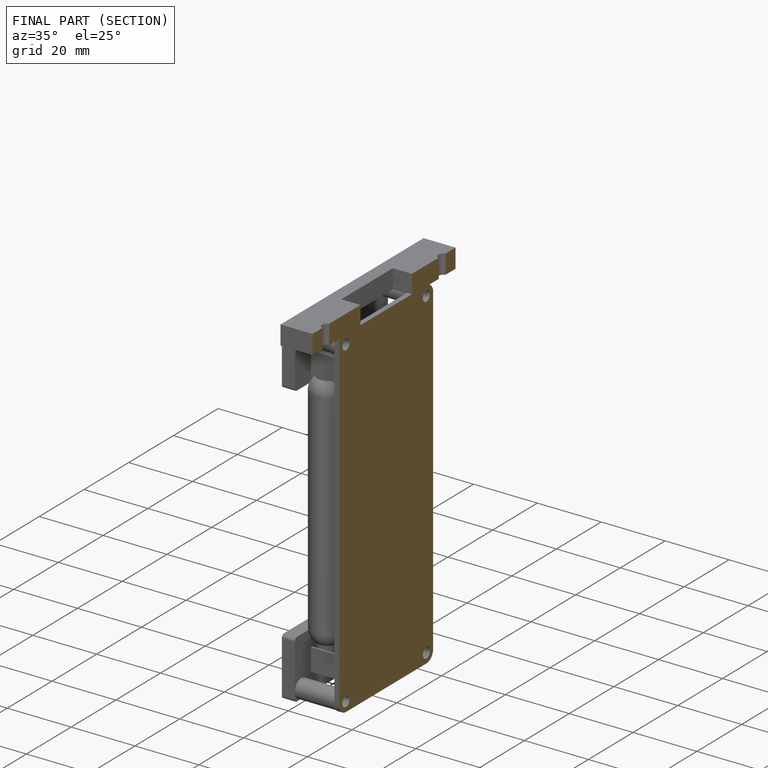
[diagram: finished part — half-section view (interior)]
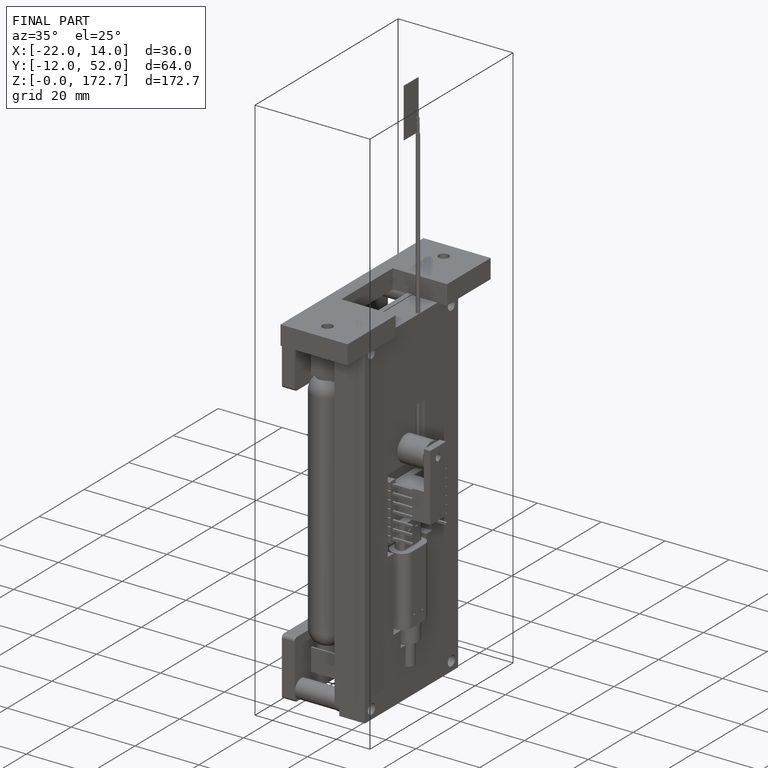
[diagram: finished part — iso view with bounding-box wireframe]
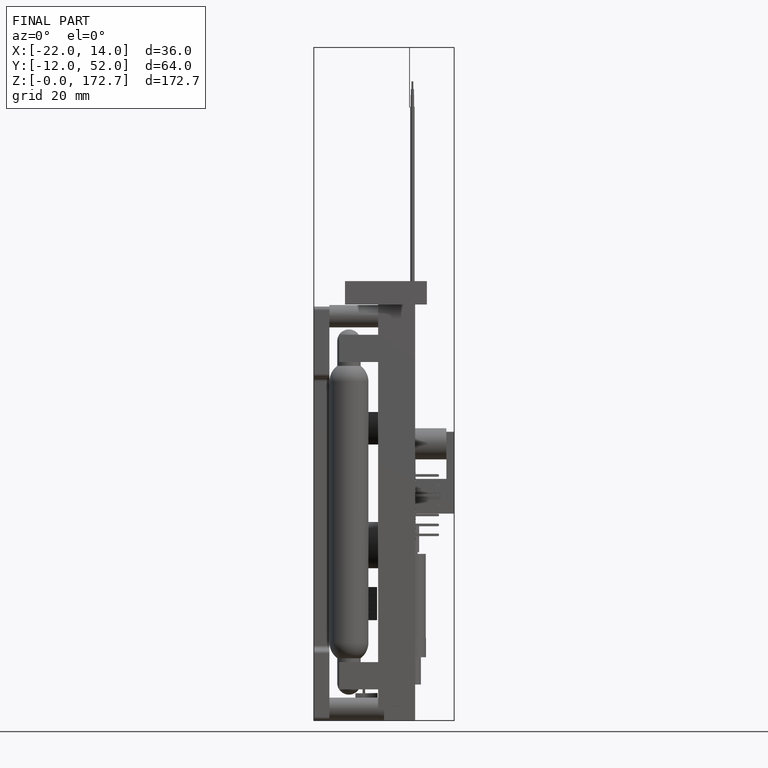
[diagram: finished part — front view with bounding-box wireframe]
